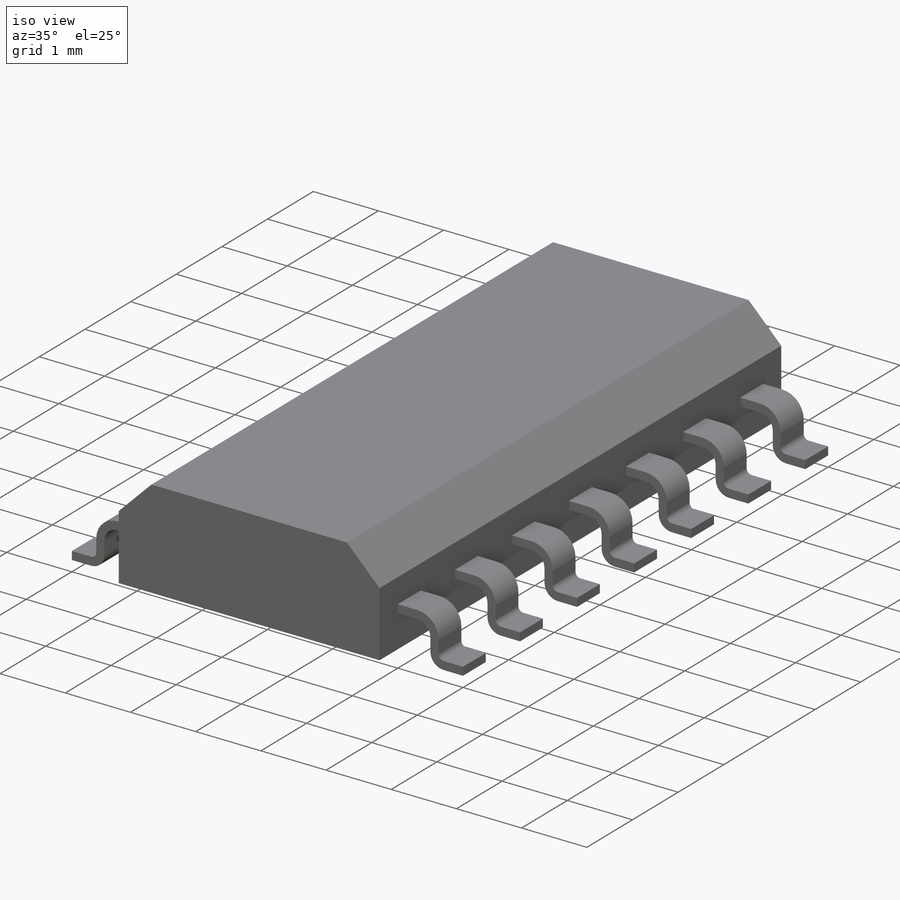
[diagram: iso view]
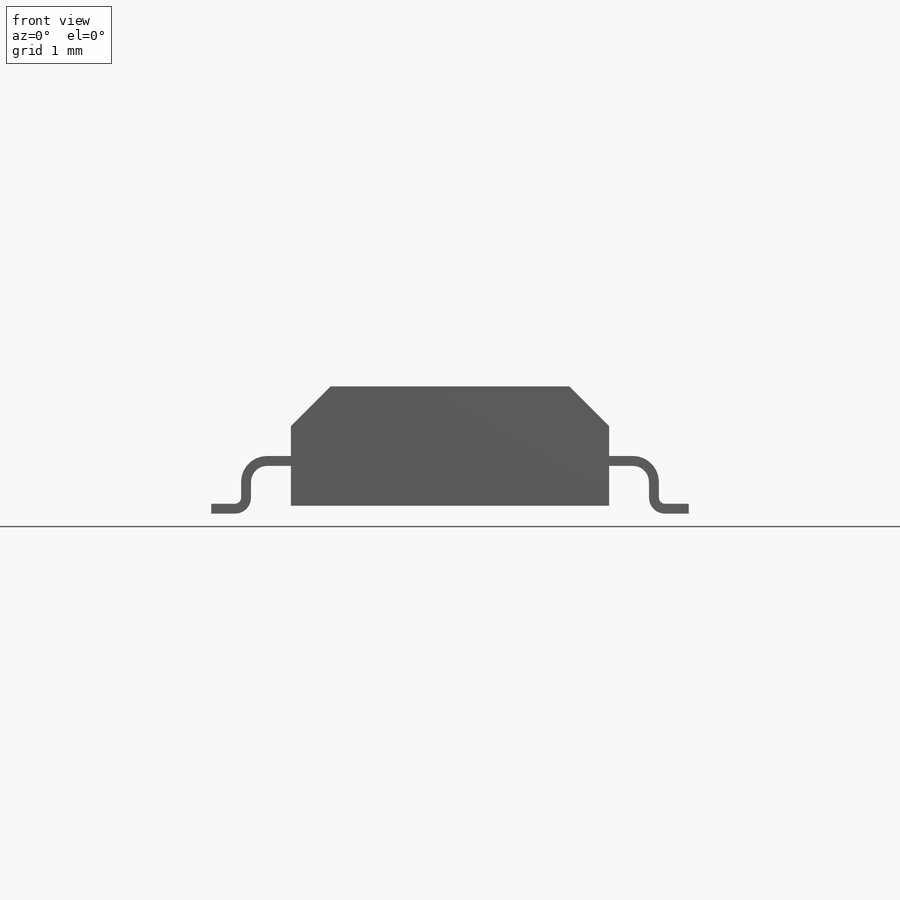
[diagram: front view]
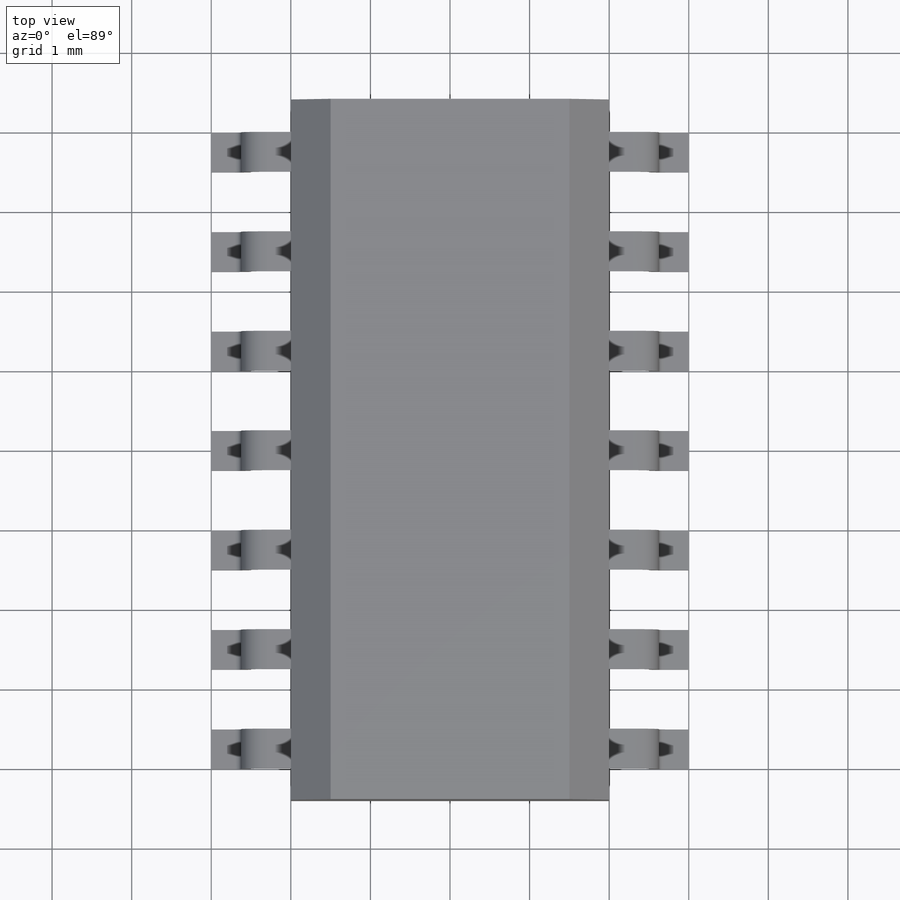
[diagram: top view]
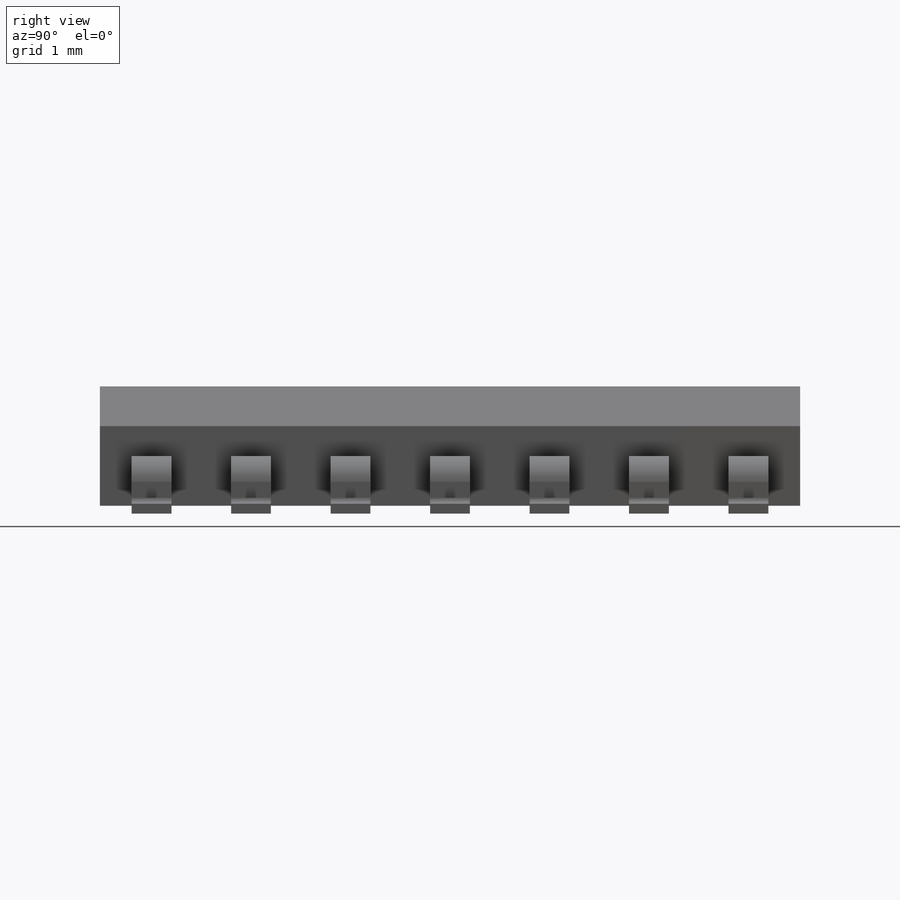
[diagram: right view]
SOLIDWORKS PART (.sldprt)
format: sldprt  version: not decoded by parser v0  size: 269,312 bytes
history: native  units: mm
features: sketch x2, extrude x2, material x1, plane x1, pattern_linear x1, mirror x1 (+15 scaffold rows collapsed)
feature tree (23):
  scaffold x15  (default folders/planes/origin — collapsed)
  material  "Material <not specified>"
  sketch  "Sketch1"  dims[D1=4.0mm D2=3.0mm D3=1.0mm D4=1.0mm D5=~0.707107mm]
  extrude  "Extrude1"  Depth=8.8mm
  plane  "Plane4"  Offset=0.4mm
  sketch  "Sketch2"  dims[D5=0.2mm D6=0.325mm D7=0.2mm D8=0.075mm D1=0.3mm D2=0.3mm D3=0.125mm D4=0.2mm D9=0.2mm D10=0.325mm D11=0.2mm D12=0.125mm D13=2.0mm D14=0.2mm D15=0.2mm D16=0.325mm]
  extrude  "Extrude2"  Depth=0.5mm
  pattern_linear  "LPattern1"  Count1=7 Count2=1 Spacing1=1.25mm Spacing2=50mm
  mirror  "Mirror1"
decode coverage: 5 of 6 modeling features carry decoded parameters
note: ~ marks probable driven/reference dimensions
note: suppression state not decoded; provenance and decode notes live in map.json
